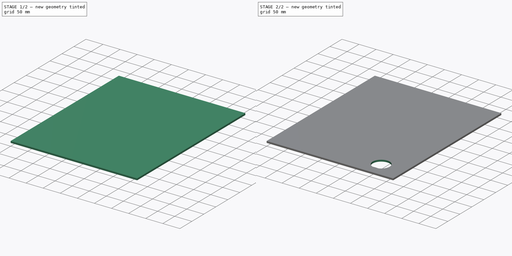
[diagram: build sequence overview — one tinted view per stage of 2, left to right]
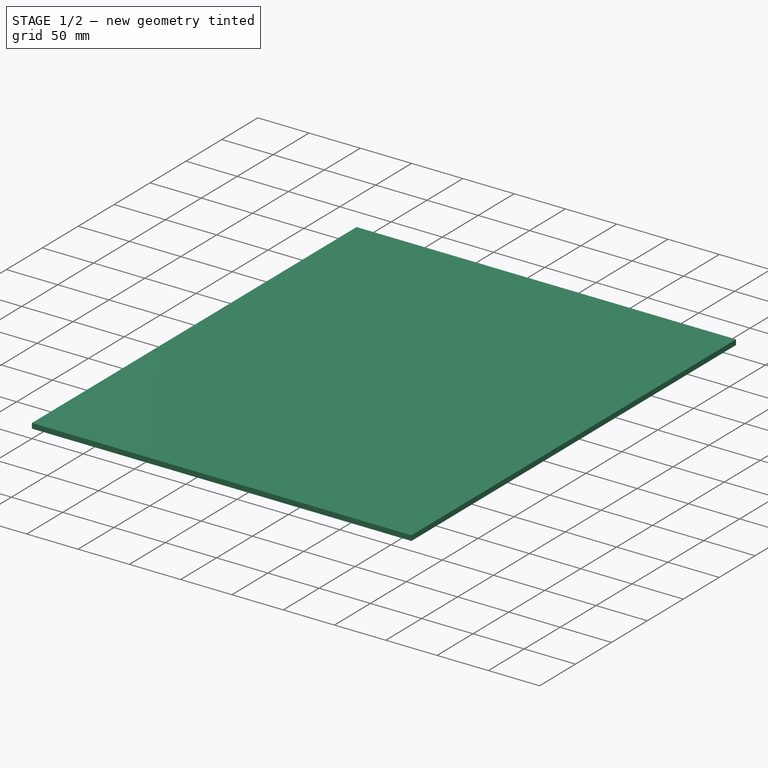
[diagram: stage 1 of 2 — iso view after this stage's code; geometry added in this stage tinted green]
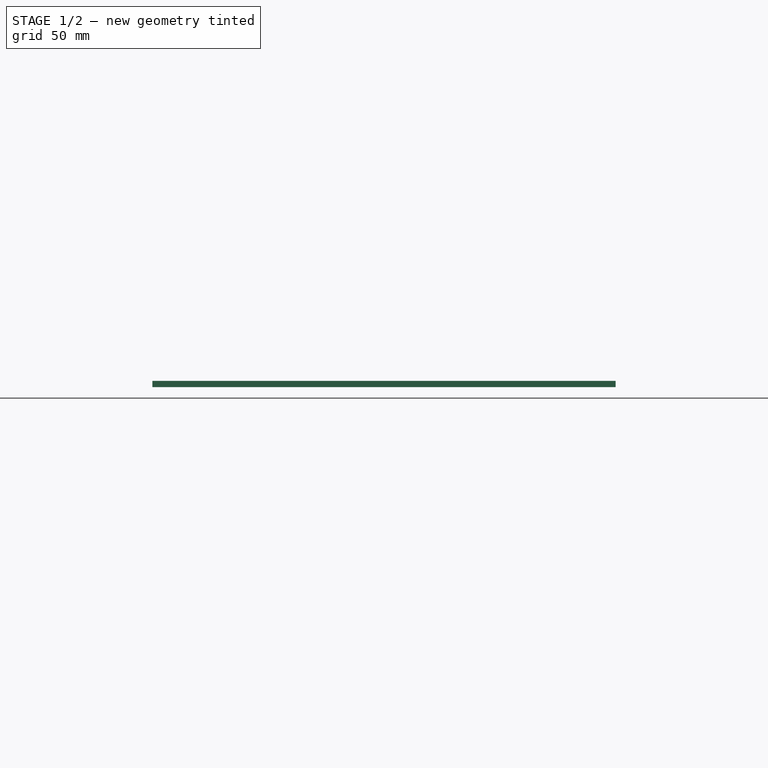
[diagram: stage 1 of 2 — front view after this stage's code; geometry added in this stage tinted green]
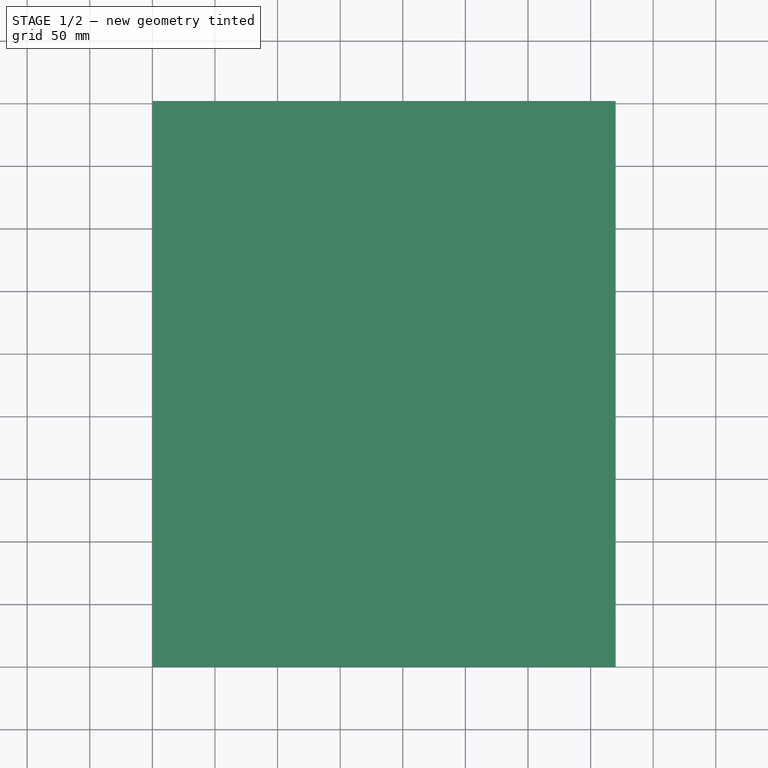
[diagram: stage 1 of 2 — top view after this stage's code; geometry added in this stage tinted green]
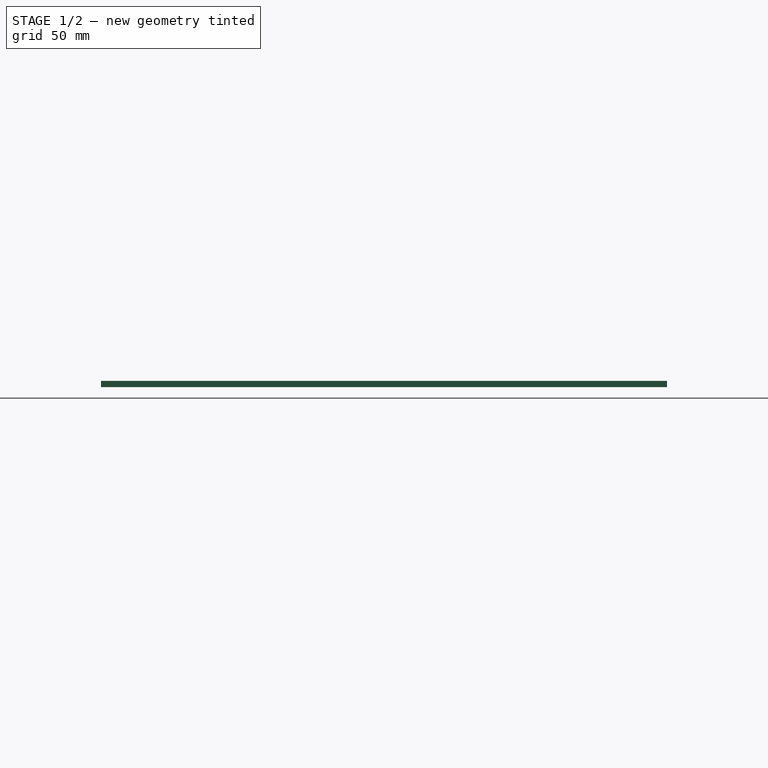
[diagram: stage 1 of 2 — right view after this stage's code; geometry added in this stage tinted green]
FCSTD DOCUMENT  (FreeCAD 0.19R24291 (Git))
Label: 500_Pedastil_Floor_Thin
License: All rights reserved
LicenseURL: http://en.wikipedia.org/wiki/All_rights_reserved
objects: Sketcher::SketchObject×3, PartDesign::Pad×1, Spreadsheet::Sheet×1, PartDesign::Pocket×1, PartDesign::Body×1, App::Part×1
note: 8 computed .brp shape members not serialized (recipe doc carries the construction recipe); baked Part::Feature solids carry a one-line shape summary decoded from their .brp

FEATURE [Sketcher::SketchObject] Sketch
  FullyConstrained = false
  MapMode = 5
  Support = -> [XY_Plane001]
  expr: Constraints[5] = Spreadsheet.Depth
  expr: Constraints[6] = Spreadsheet.Width
  sketch-geometry (7):
    g0: LineSegment StartX=0 StartY=413.879 StartZ=0 EndX=0 EndY=452 EndZ=0
    g1: LineSegment StartX=0 StartY=452 StartZ=0 EndX=370 EndY=452 EndZ=0
    g2: LineSegment StartX=370 StartY=452 StartZ=0 EndX=370 EndY=0 EndZ=0
    g3: LineSegment StartX=370 StartY=0 StartZ=0 EndX=0 EndY=0 EndZ=0
    g4: LineSegment StartX=0 StartY=0 StartZ=0 EndX=0 EndY=413.879 EndZ=0
    g5: LineSegment StartX=0 StartY=0 StartZ=0 EndX=185 EndY=226 EndZ=0
    g6: LineSegment StartX=185 StartY=226 StartZ=0 EndX=370 EndY=452 EndZ=0
  constraints (18):
    c: Coincident(g1,g0)
    c: Horizontal(g1)
    c: Horizontal(g3)
    c: Coincident(g4,g3)
    c: Coincident(g3,g2)
    c: Distance(g1) = 370
    c: DistanceY(g2,g2) = 452
    c: Coincident(g1,g2)
    c: Coincident(g5,g3)
    c: Coincident(g6,g1)
    c: Equal(g6,g5)
    c: Coincident(g5,g6)
    c: Parallel(g5,g6)
    c: Vertical(g0)
    c: Vertical(g2)
    c: Coincident(g4,g0)
    c: Vertical(g4)
    c: Coincident(g3,g-1)
FEATURE [PartDesign::Pad] Pad
  AllowMultiFace = false
  Direction = (1,1,1)
  Length = 5
  Length2 = 100
  Profile = -> Sketch
  Reversed = true
  Type = 0
  expr: Length = Spreadsheet.T
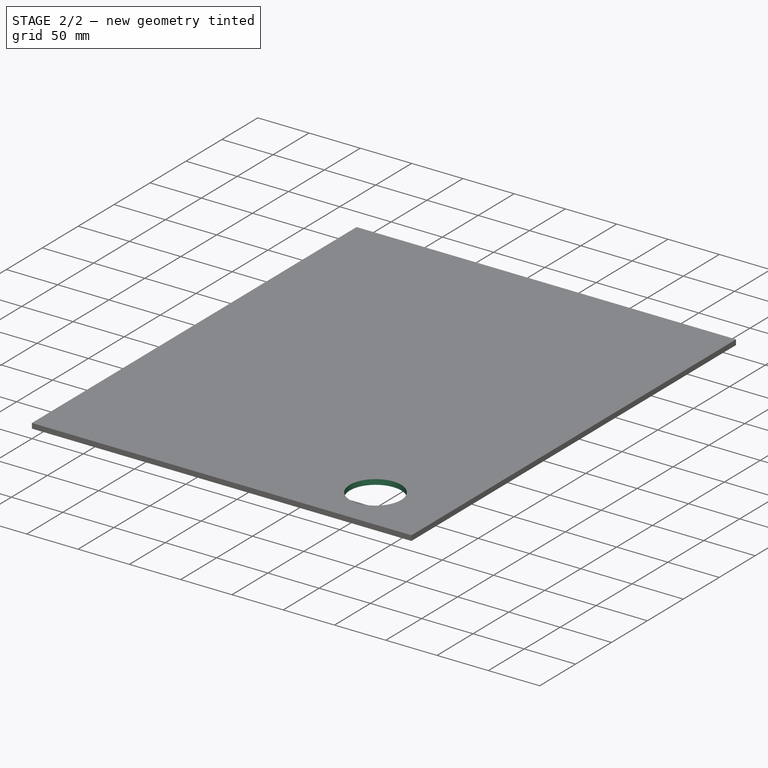
[diagram: stage 2 of 2 — iso view after this stage's code; geometry added in this stage tinted green]
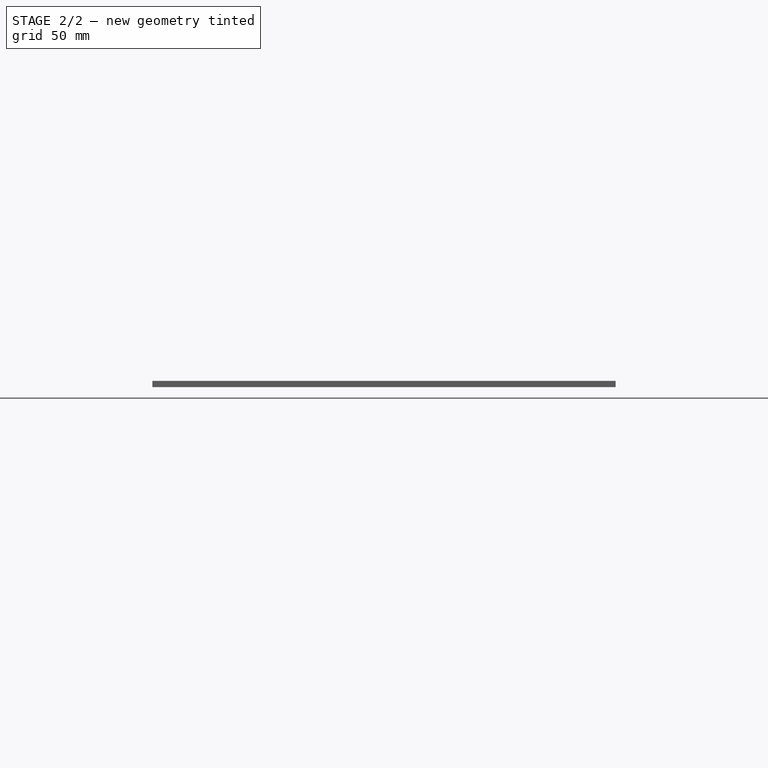
[diagram: stage 2 of 2 — front view after this stage's code; geometry added in this stage tinted green]
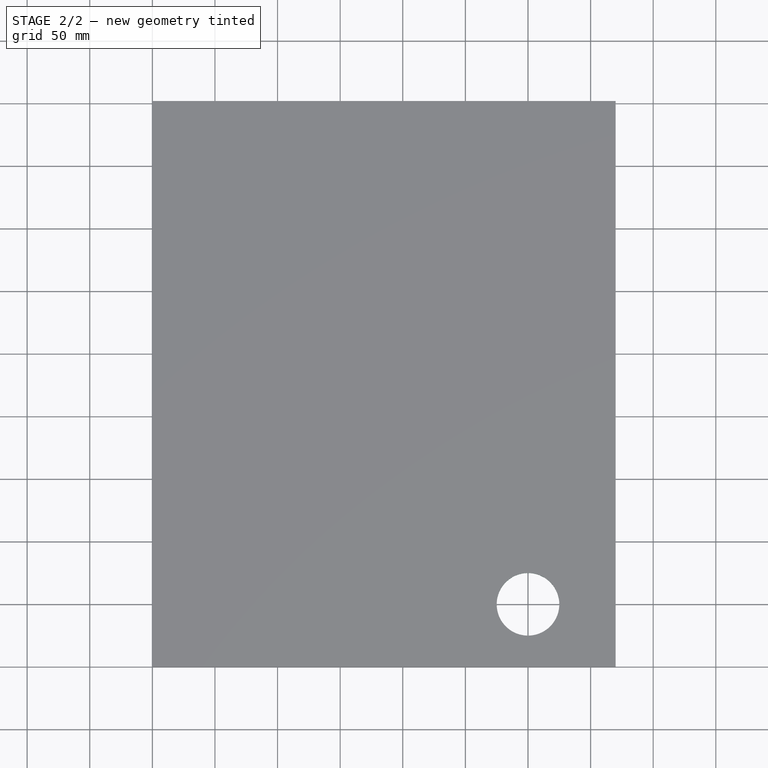
[diagram: stage 2 of 2 — top view after this stage's code; geometry added in this stage tinted green]
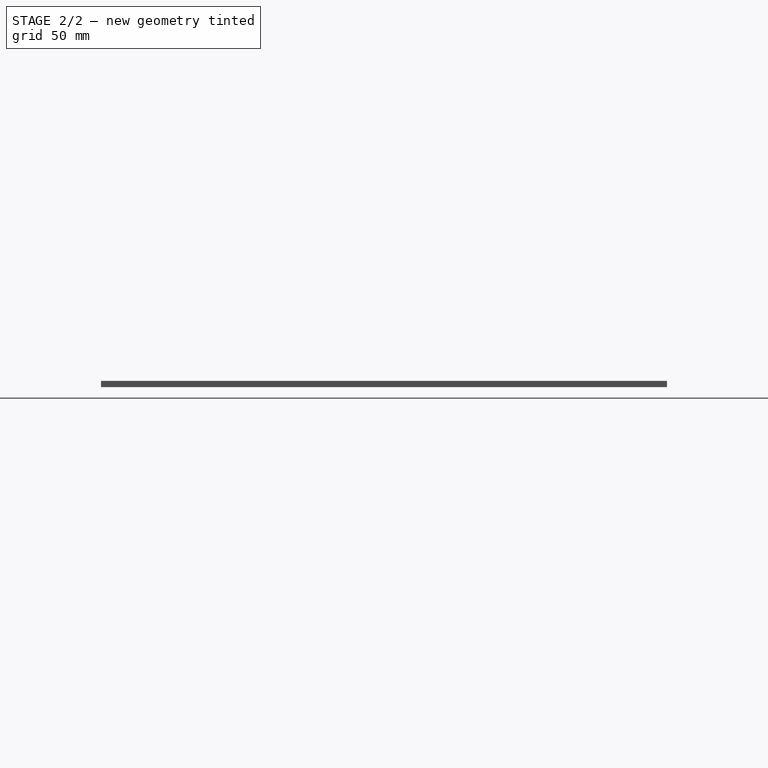
[diagram: stage 2 of 2 — right view after this stage's code; geometry added in this stage tinted green]
FEATURE [Spreadsheet::Sheet] Spreadsheet
  cells = B2=Dependancies; C2=Value; D2=Nominal; E2=Var; F2=Description; G2=FILE; B3=Side Wall pedistil; C3=19; B4=Sidewall Width; C4=415; B5=Front Wall thickness; C5=10; B8=BODY FLOOR; C8=Value; D8=Nominal; E8=Var; F8=Description; G8=FILE; B9=Orientation; C9=(0,0,1); F9=XY; B10=Z=; C10(T)=5; E10=.T; F10=Thichness Z; B11=Y=; C11(Width)==500 - 2 * C3 - 10; D11=500; E11=.W; F11=Width Y; B12=X=; C12(Depth)==D12 - 4 * C5 - 5; D12==+C4; E12=.D; F12=Depth X
FEATURE [Sketcher::SketchObject] Sketch001
  FullyConstrained = false
  MapMode = 5
  Placement = pos=(0,0,-5) rot=(1,0,0;3.14159rad)
  Support = -> [Pad]
  sketch-geometry (3):
    g0: LineSegment StartX=16.778 StartY=-210.88 StartZ=0 EndX=17.2836 EndY=-236.816 EndZ=0
    g1: LineSegment StartX=17.2836 StartY=-236.816 StartZ=0 EndX=84.9762 EndY=-236.816 EndZ=0
    g2: LineSegment StartX=84.9762 StartY=-236.816 StartZ=0 EndX=16.778 EndY=-210.88 EndZ=0
  constraints (4):
    c: Coincident(g0,g1)
    c: Horizontal(g1)
    c: Coincident(g1,g2)
    c: Coincident(g2,g0)
FEATURE [Sketcher::SketchObject] Sketch002
  FullyConstrained = true
  MapMode = 5
  Support = -> [Pad]
  sketch-geometry (1):
    g0: Circle CenterX=300 CenterY=50 CenterZ=0 NormalX=0 NormalY=0 NormalZ=1 AngleXU=0 Radius=25
  constraints (3):
    c: Diameter(g0) = 50
    c: DistanceX(g-1,g0) = 300
    c: DistanceY(g-1,g0) = 50
FEATURE [PartDesign::Pocket] Pocket
  BaseFeature = -> Pad
  Length = 5
  Length2 = 100
  Profile = -> Sketch002
  Type = 1
FEATURE [PartDesign::Body] PadBody
  Group = -> [Sketch,Pad,Sketch002,Pocket]
  Origin = -> Origin001
  Tip = -> Pocket
FEATURE [App::Part] Part
  Group = -> [PadBody]
  License = CC BY 3.0
  LicenseURL = http://creativecommons.org/licenses/by/3.0/
  Origin = -> Origin
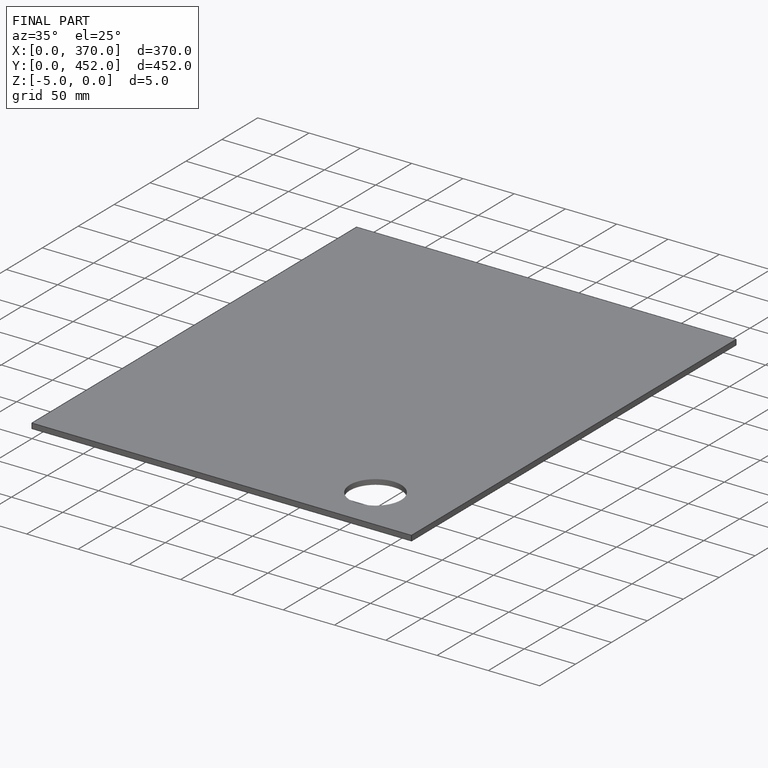
[diagram: finished part — iso view with bounding-box wireframe]
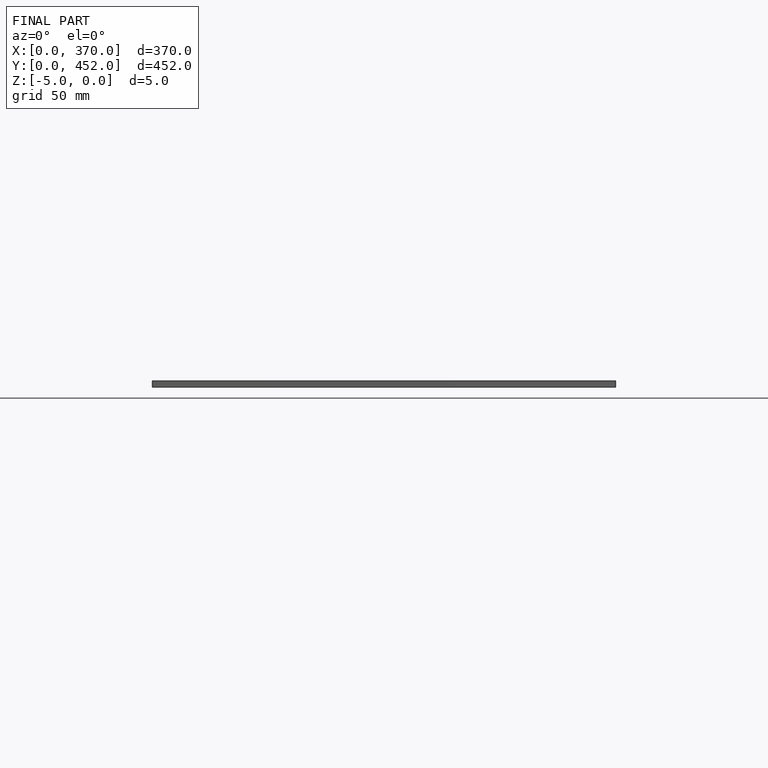
[diagram: finished part — front view with bounding-box wireframe]
